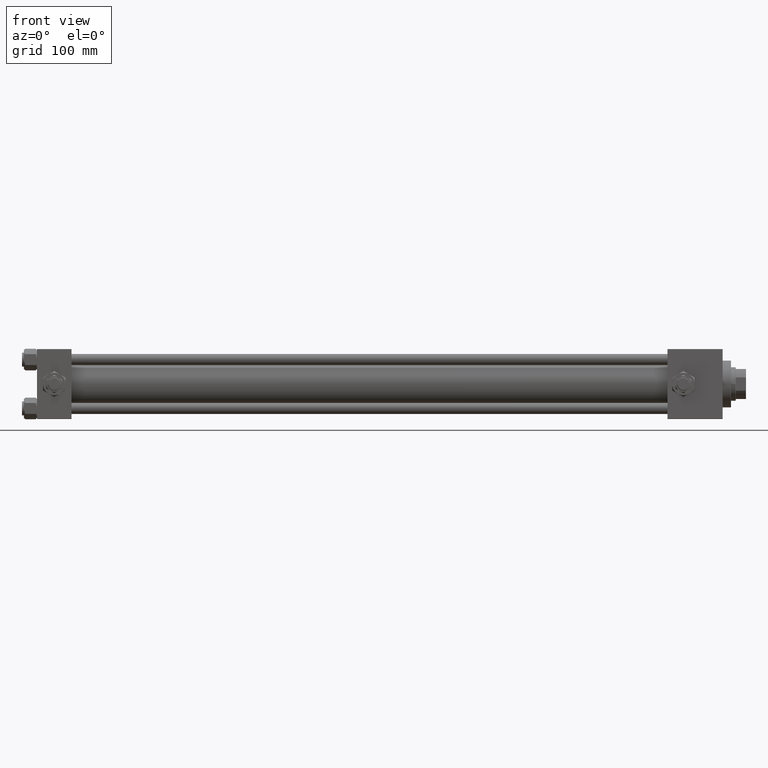
[diagram: clean part render]
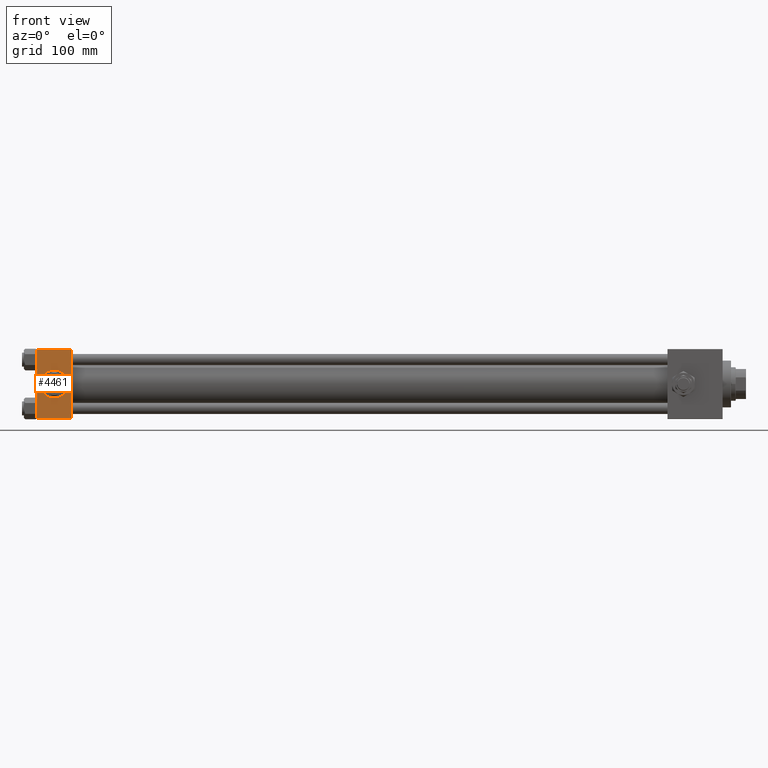
[diagram: same view with one face highlighted and labeled with its STEP entity id]
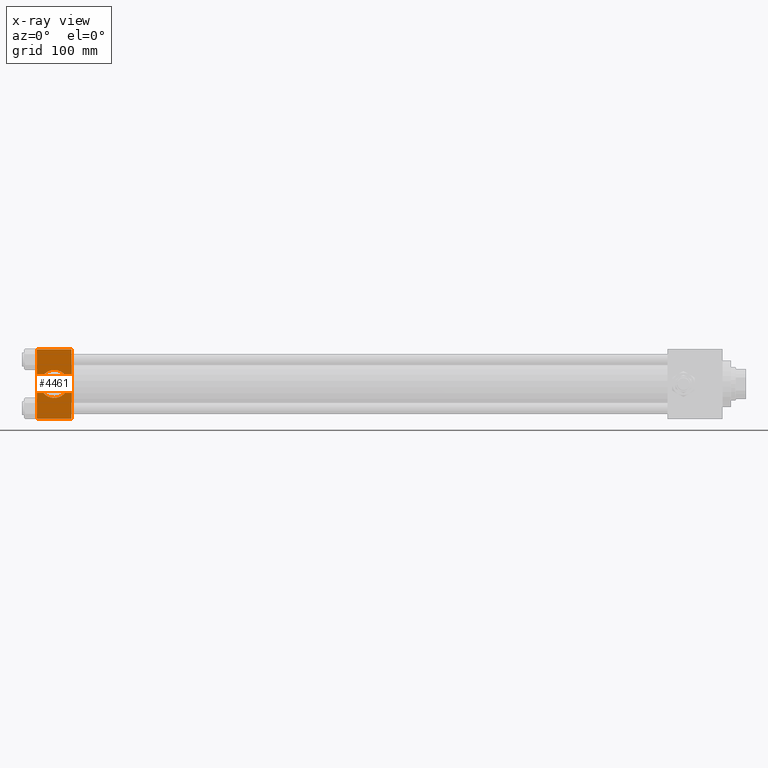
[diagram: x-ray of the same camera — body ghosted, the highlighted face saturated]
A machine part, front view. The second image highlights one B-rep face of the part: STEP entity #4461.
The next image is the same camera in x-ray: the body ghosted, the highlighted face saturated — about 0% of this face is hidden behind the body in this view.
In plain terms, the highlighted planar face has unit normal (0, 1, 0).
Its self-contained STEP definition (entity closure, byte-faithful):
#9 = EDGE_CURVE ( 'NONE', #3815, #8650, #7941, .T. ) ;
#912 = EDGE_LOOP ( 'NONE', ( #11351, #5956 ) ) ;
#1467 = CARTESIAN_POINT ( 'NONE',  ( 37.00000000000000000, -37.50000000000000711, 36.99999999999999289 ) ) ;
#3815 = VERTEX_POINT ( 'NONE', #30692 ) ;
#4461 = ADVANCED_FACE ( 'NONE', ( #43815, #35600 ), #47783, .F. ) ;
#5466 = CIRCLE ( 'NONE', #39295, 15.00000000000000178 ) ;
#5956 = ORIENTED_EDGE ( 'NONE', *, *, #31219, .F. ) ;
#6955 = ORIENTED_EDGE ( 'NONE', *, *, #49811, .T. ) ;
#7941 = CIRCLE ( 'NONE', #18092, 15.00000000000000178 ) ;
#8650 = VERTEX_POINT ( 'NONE', #35619 ) ;
#8733 = CARTESIAN_POINT ( 'NONE',  ( 37.00000000000000000, -37.50000000000000000, -37.00000000000003553 ) ) ;
#8811 = LINE ( 'NONE', #24973, #21182 ) ;
#10296 = VERTEX_POINT ( 'NONE', #31681 ) ;
#10361 = CARTESIAN_POINT ( 'NONE',  ( 18.50000000000000000, -37.50000000000000711, -3.469446951953614978E-15 ) ) ;
#10929 = DIRECTION ( 'NONE',  ( 0.000000000000000000, -9.251858538542971581E-17, 1.000000000000000000 ) ) ;
#10933 = VERTEX_POINT ( 'NONE', #8733 ) ;
#11351 = ORIENTED_EDGE ( 'NONE', *, *, #9, .F. ) ;
#13032 = DIRECTION ( 'NONE',  ( 0.000000000000000000, -1.000000000000000000, -8.673617379884036705E-17 ) ) ;
#15437 = CARTESIAN_POINT ( 'NONE',  ( 37.00000000000000000, -37.50000000000000711, 37.49999999999999289 ) ) ;
#15812 = VERTEX_POINT ( 'NONE', #18938 ) ;
#16245 = DIRECTION ( 'NONE',  ( -1.000000000000000000, 0.000000000000000000, 0.000000000000000000 ) ) ;
#17224 = EDGE_CURVE ( 'NONE', #19973, #10296, #8811, .T. ) ;
#17279 = AXIS2_PLACEMENT_3D ( 'NONE', #15437, #39045, #10929 ) ;
#17379 = ORIENTED_EDGE ( 'NONE', *, *, #44718, .T. ) ;
#18092 = AXIS2_PLACEMENT_3D ( 'NONE', #37429, #13032, #44855 ) ;
#18938 = CARTESIAN_POINT ( 'NONE',  ( 0.000000000000000000, -37.50000000000000000, -37.00000000000003553 ) ) ;
#19973 = VERTEX_POINT ( 'NONE', #1467 ) ;
#20250 = LINE ( 'NONE', #33254, #26005 ) ;
#20769 = ORIENTED_EDGE ( 'NONE', *, *, #29407, .F. ) ;
#21182 = VECTOR ( 'NONE', #16245, 1000.000000000000000 ) ;
#22117 = CARTESIAN_POINT ( 'NONE',  ( 0.000000000000000000, -37.50000000000000711, 37.49999999999999289 ) ) ;
#24973 = CARTESIAN_POINT ( 'NONE',  ( 37.00000000000000000, -37.50000000000000711, 36.99999999999999289 ) ) ;
#26005 = VECTOR ( 'NONE', #37236, 1000.000000000000000 ) ;
#29407 = EDGE_CURVE ( 'NONE', #19973, #10933, #41210, .T. ) ;
#30692 = CARTESIAN_POINT ( 'NONE',  ( 18.50000000000000000, -37.50000000000000711, -15.00000000000000533 ) ) ;
#31219 = EDGE_CURVE ( 'NONE', #8650, #3815, #5466, .T. ) ;
#31681 = CARTESIAN_POINT ( 'NONE',  ( 0.000000000000000000, -37.50000000000000711, 36.99999999999999289 ) ) ;
#33254 = CARTESIAN_POINT ( 'NONE',  ( 37.00000000000000000, -37.50000000000000000, -37.00000000000003553 ) ) ;
#33515 = DIRECTION ( 'NONE',  ( 0.000000000000000000, 9.251858538542971581E-17, -1.000000000000000000 ) ) ;
#33550 = VECTOR ( 'NONE', #45996, 1000.000000000000000 ) ;
#33749 = DIRECTION ( 'NONE',  ( 0.000000000000000000, 0.000000000000000000, -1.000000000000000000 ) ) ;
#35600 = FACE_OUTER_BOUND ( 'NONE', #48040, .T. ) ;
#35619 = CARTESIAN_POINT ( 'NONE',  ( 18.50000000000000355, -37.50000000000000711, 14.99999999999999822 ) ) ;
#37236 = DIRECTION ( 'NONE',  ( 1.000000000000000000, 0.000000000000000000, 0.000000000000000000 ) ) ;
#37429 = CARTESIAN_POINT ( 'NONE',  ( 18.50000000000000000, -37.50000000000000711, -3.469446951953614978E-15 ) ) ;
#39045 = DIRECTION ( 'NONE',  ( -0.000000000000000000, 1.000000000000000000, 9.251858538542971581E-17 ) ) ;
#39295 = AXIS2_PLACEMENT_3D ( 'NONE', #10361, #49907, #33749 ) ;
#41210 = LINE ( 'NONE', #45707, #50229 ) ;
#42283 = LINE ( 'NONE', #22117, #33550 ) ;
#43815 = FACE_BOUND ( 'NONE', #912, .T. ) ;
#44718 = EDGE_CURVE ( 'NONE', #10296, #15812, #42283, .T. ) ;
#44855 = DIRECTION ( 'NONE',  ( 0.000000000000000000, 0.000000000000000000, -1.000000000000000000 ) ) ;
#45707 = CARTESIAN_POINT ( 'NONE',  ( 37.00000000000000000, -37.50000000000000711, 37.49999999999999289 ) ) ;
#45996 = DIRECTION ( 'NONE',  ( 0.000000000000000000, 9.251858538542971581E-17, -1.000000000000000000 ) ) ;
#47783 = PLANE ( 'NONE',  #17279 ) ;
#48040 = EDGE_LOOP ( 'NONE', ( #17379, #6955, #20769, #50179 ) ) ;
#49811 = EDGE_CURVE ( 'NONE', #15812, #10933, #20250, .T. ) ;
#49907 = DIRECTION ( 'NONE',  ( 0.000000000000000000, -1.000000000000000000, -8.673617379884036705E-17 ) ) ;
#50179 = ORIENTED_EDGE ( 'NONE', *, *, #17224, .T. ) ;
#50229 = VECTOR ( 'NONE', #33515, 1000.000000000000000 ) ;